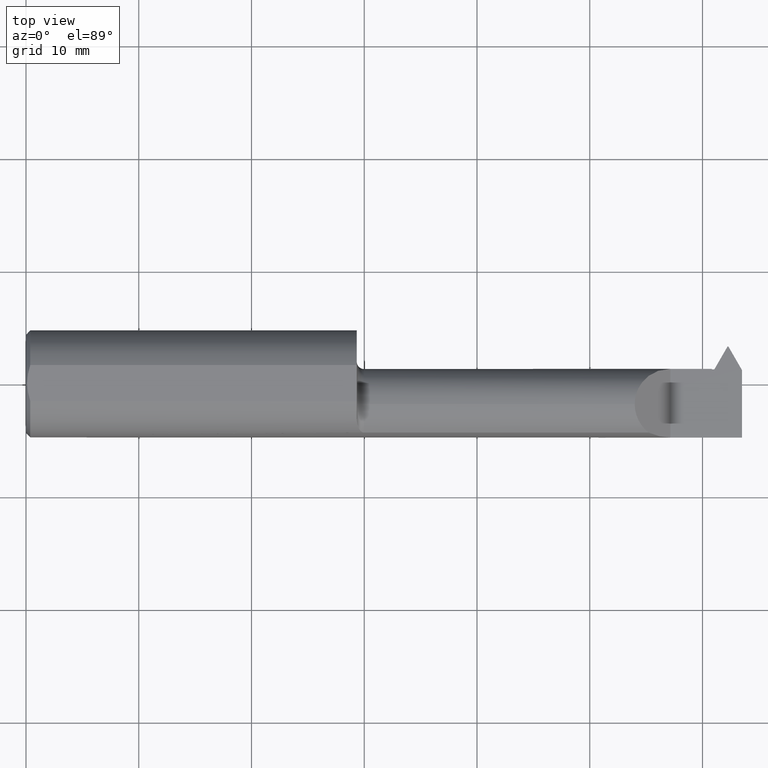
[diagram: clean part render]
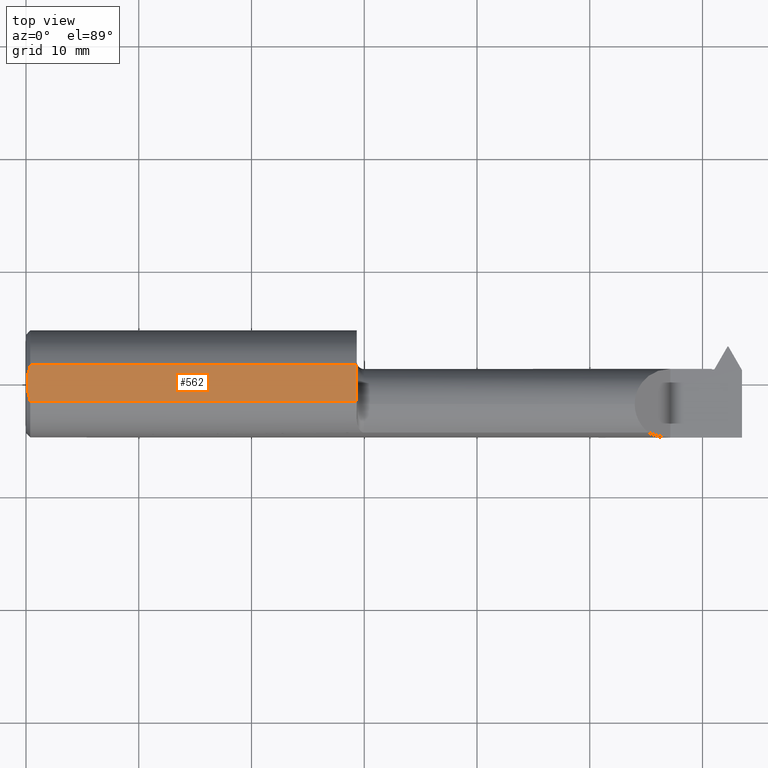
[diagram: same view with one face highlighted and labeled with its STEP entity id]
A machine part, top view. The second image highlights one B-rep face of the part: STEP entity #562.
In plain terms, the highlighted planar face has unit normal (-0, 0, -1).
Its self-contained STEP definition (entity closure, byte-faithful):
#10 = B_SPLINE_CURVE_WITH_KNOTS ( 'NONE', 3,
 ( #497, #957, #797, #640, #806, #280 ),
 .UNSPECIFIED., .F., .F.,
 ( 4, 2, 4 ),
 ( 0.004260876108247118113, 0.005070351723613903024, 0.005879827338980687934 ),
 .UNSPECIFIED. ) ;
#33 = DIRECTION ( 'NONE',  ( -0.000000000000000000, 0.000000000000000000, -1.000000000000000000 ) ) ;
#47 = LINE ( 'NONE', #563, #787 ) ;
#73 = B_SPLINE_CURVE_WITH_KNOTS ( 'NONE', 3,
 ( #431, #440, #200, #355, #736, #351 ),
 .UNSPECIFIED., .F., .F.,
 ( 4, 2, 4 ),
 ( 0.005879827338980687934, 0.006688927827499994636, 0.007498028316019300470 ),
 .UNSPECIFIED. ) ;
#87 = ORIENTED_EDGE ( 'NONE', *, *, #905, .F. ) ;
#141 = EDGE_CURVE ( 'NONE', #524, #899, #164, .T. ) ;
#164 = LINE ( 'NONE', #927, #167 ) ;
#167 = VECTOR ( 'NONE', #230, 39.37007874015748143 ) ;
#176 = VERTEX_POINT ( 'NONE', #774 ) ;
#179 = CARTESIAN_POINT ( 'NONE',  ( 1.155000000000000027, -0.06325108694718215019, 0.1763499999999999790 ) ) ;
#183 = DIRECTION ( 'NONE',  ( 0.000000000000000000, -1.000000000000000000, 0.000000000000000000 ) ) ;
#198 = AXIS2_PLACEMENT_3D ( 'NONE', #711, #33, #861 ) ;
#200 = CARTESIAN_POINT ( 'NONE',  ( 0.004991821518933527678, -0.02143118227845419027, 0.1763500000000000068 ) ) ;
#230 = DIRECTION ( 'NONE',  ( -1.000000000000000000, -0.000000000000000000, -0.000000000000000000 ) ) ;
#248 = EDGE_CURVE ( 'NONE', #253, #899, #73, .T. ) ;
#253 = VERTEX_POINT ( 'NONE', #499 ) ;
#267 = VERTEX_POINT ( 'NONE', #286 ) ;
#280 = CARTESIAN_POINT ( 'NONE',  ( 0.003999999999998503017, 1.478949923165211460E-16, 0.1763499999999999790 ) ) ;
#286 = CARTESIAN_POINT ( 'NONE',  ( 1.155000000000000027, 0.06325108694718213631, 0.1763499999999999790 ) ) ;
#287 = EDGE_LOOP ( 'NONE', ( #87, #936, #948, #482, #839 ) ) ;
#351 = CARTESIAN_POINT ( 'NONE',  ( 0.01500000000000079048, -0.06325108694718213631, 0.1763499999999999790 ) ) ;
#355 = CARTESIAN_POINT ( 'NONE',  ( 0.008774081248144433368, -0.04260406931483737974, 0.1763499999999999790 ) ) ;
#397 = VECTOR ( 'NONE', #183, 39.37007874015748143 ) ;
#431 = CARTESIAN_POINT ( 'NONE',  ( 0.003999999999998503017, 1.478949923165211460E-16, 0.1763499999999999790 ) ) ;
#440 = CARTESIAN_POINT ( 'NONE',  ( 0.004000000000000362640, -0.01076149482173471492, 0.1763499999999999790 ) ) ;
#482 = ORIENTED_EDGE ( 'NONE', *, *, #248, .T. ) ;
#495 = FACE_OUTER_BOUND ( 'NONE', #287, .T. ) ;
#497 = CARTESIAN_POINT ( 'NONE',  ( 0.01500000000000079568, 0.06325108694718213631, 0.1763499999999999790 ) ) ;
#499 = CARTESIAN_POINT ( 'NONE',  ( 0.003999999999998503017, 1.478949923165211460E-16, 0.1763499999999999790 ) ) ;
#524 = VERTEX_POINT ( 'NONE', #179 ) ;
#557 = CARTESIAN_POINT ( 'NONE',  ( 1.155000000000000027, 0.1749999999999999889, 0.1763499999999999790 ) ) ;
#562 = ADVANCED_FACE ( 'NONE', ( #495 ), #641, .F. ) ;
#563 = CARTESIAN_POINT ( 'NONE',  ( 2.500000000000000000, 0.06325108694718213631, 0.1763499999999999790 ) ) ;
#635 = EDGE_CURVE ( 'NONE', #176, #267, #47, .T. ) ;
#640 = CARTESIAN_POINT ( 'NONE',  ( 0.005015674426658929021, 0.02160712711892616780, 0.1763499999999999790 ) ) ;
#641 = PLANE ( 'NONE',  #198 ) ;
#711 = CARTESIAN_POINT ( 'NONE',  ( 0.000000000000000000, 0.1749999999999999889, 0.1763499999999999790 ) ) ;
#736 = CARTESIAN_POINT ( 'NONE',  ( 0.01157529649258904302, -0.05310709997271137461, 0.1763500000000000068 ) ) ;
#768 = CARTESIAN_POINT ( 'NONE',  ( 0.01500000000000079048, -0.06325108694718213631, 0.1763499999999999790 ) ) ;
#774 = CARTESIAN_POINT ( 'NONE',  ( 0.01500000000000079568, 0.06325108694718213631, 0.1763499999999999790 ) ) ;
#787 = VECTOR ( 'NONE', #871, 39.37007874015748143 ) ;
#797 = CARTESIAN_POINT ( 'NONE',  ( 0.008798171893809259708, 0.04269596770163366223, 0.1763499999999999790 ) ) ;
#806 = CARTESIAN_POINT ( 'NONE',  ( 0.004000000000000399070, 0.01076648422130179264, 0.1763500000000000068 ) ) ;
#839 = ORIENTED_EDGE ( 'NONE', *, *, #141, .F. ) ;
#861 = DIRECTION ( 'NONE',  ( -1.000000000000000000, 0.000000000000000000, 0.000000000000000000 ) ) ;
#871 = DIRECTION ( 'NONE',  ( 1.000000000000000000, 0.000000000000000000, 0.000000000000000000 ) ) ;
#899 = VERTEX_POINT ( 'NONE', #768 ) ;
#905 = EDGE_CURVE ( 'NONE', #267, #524, #939, .T. ) ;
#927 = CARTESIAN_POINT ( 'NONE',  ( 2.500000000000000000, -0.06325108694718213631, 0.1763499999999999790 ) ) ;
#936 = ORIENTED_EDGE ( 'NONE', *, *, #635, .F. ) ;
#939 = LINE ( 'NONE', #557, #397 ) ;
#948 = ORIENTED_EDGE ( 'NONE', *, *, #979, .T. ) ;
#957 = CARTESIAN_POINT ( 'NONE',  ( 0.01155577088586097305, 0.05304926503900153634, 0.1763499999999999512 ) ) ;
#979 = EDGE_CURVE ( 'NONE', #176, #253, #10, .T. ) ;